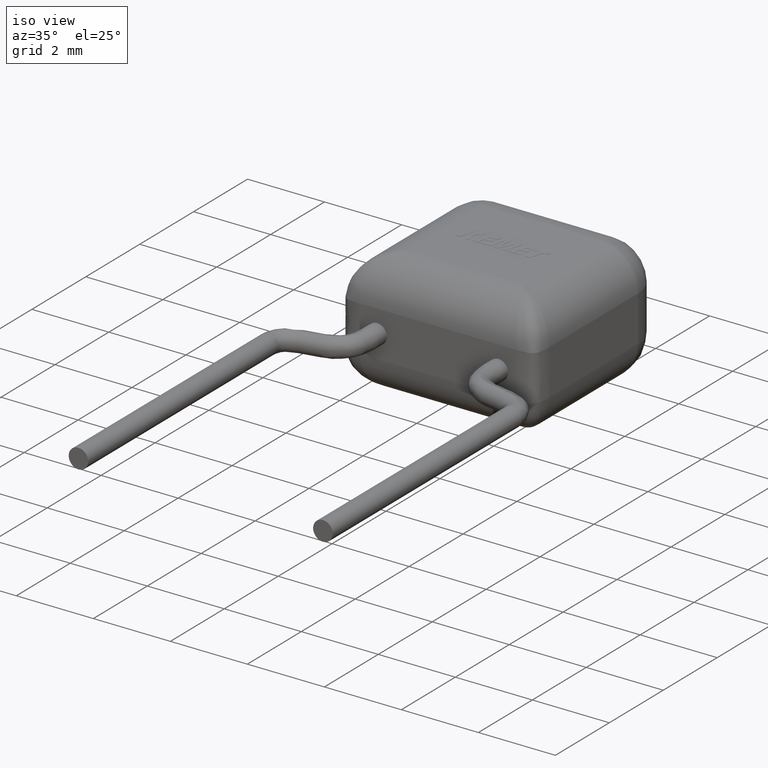
[diagram: clean part render]
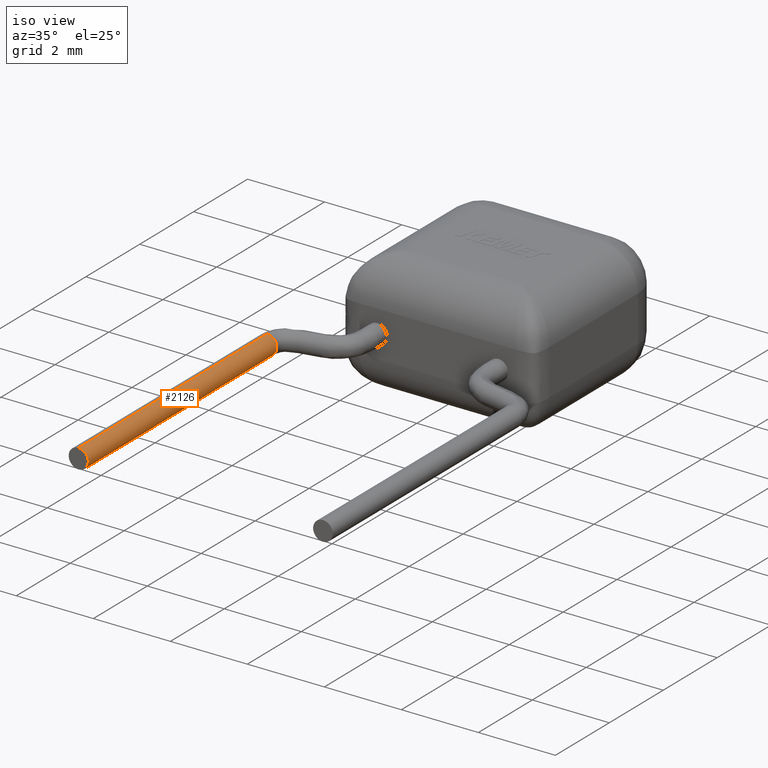
[diagram: same view with one face highlighted and labeled with its STEP entity id]
A machine part, iso view. The second image highlights one B-rep face of the part: STEP entity #2126.
In plain terms, the highlighted face is a freeform B-spline surface patch.
Its self-contained STEP definition (entity closure, byte-faithful):
#95 = AXIS2_PLACEMENT_3D ( 'NONE', #1979, #5043, #879 ) ;
#432 = CARTESIAN_POINT ( 'NONE',  ( -0.6349999999999997900, -1.789240000000000800, 1.589999999999999900 ) ) ;
#447 = VECTOR ( 'NONE', #3697, 1000.000000000000000 ) ;
#879 = DIRECTION ( 'NONE',  ( 0.0000000000000000000, 0.0000000000000000000, -1.000000000000000000 ) ) ;
#913 = ORIENTED_EDGE ( 'NONE', *, *, #6501, .T. ) ;
#966 = DIRECTION ( 'NONE',  ( 0.0000000000000000000, 0.0000000000000000000, -1.000000000000000000 ) ) ;
#1030 = DIRECTION ( 'NONE',  ( -0.003953937269740414300, -0.9999921831594820200, -1.232595164407828500E-032 ) ) ;
#1155 = EDGE_CURVE ( 'NONE', #1294, #6392, #3524, .T. ) ;
#1294 = VERTEX_POINT ( 'NONE', #5185 ) ;
#1355 = DIRECTION ( 'NONE',  ( 1.548860246407863800E-016, -1.000000000000000000, 0.0000000000000000000 ) ) ;
#1411 = VECTOR ( 'NONE', #1355, 1000.000000000000000 ) ;
#1704 = CIRCLE ( 'NONE', #95, 0.2550000000000000000 ) ;
#1979 = CARTESIAN_POINT ( 'NONE',  ( -0.6349999999999987900, -8.789239999999999500, 1.589999999999999900 ) ) ;
#2126 = ADVANCED_FACE ( 'NONE', ( #2611 ), #5162, .T. ) ;
#2473 = CARTESIAN_POINT ( 'NONE',  ( -0.6349999999999997900, -1.789240000000000800, 1.844999999999999800 ) ) ;
#2611 = FACE_OUTER_BOUND ( 'NONE', #4254, .T. ) ;
#2657 = CIRCLE ( 'NONE', #5088, 0.2550000000000000000 ) ;
#2959 = CARTESIAN_POINT ( 'NONE',  ( -0.6349999999999997900, -1.789240000000000800, 1.334999999999999700 ) ) ;
#3006 = ORIENTED_EDGE ( 'NONE', *, *, #5492, .F. ) ;
#3422 = CARTESIAN_POINT ( 'NONE',  ( -0.6349999999999997900, -1.789240000000000800, 1.334999999999999700 ) ) ;
#3436 = ORIENTED_EDGE ( 'NONE', *, *, #1155, .F. ) ;
#3524 = LINE ( 'NONE', #3422, #1411 ) ;
#3603 = CARTESIAN_POINT ( 'NONE',  ( -0.1250039865886641000, -1.791256508007568200, 1.334999999999999700 ) ) ;
#3697 = DIRECTION ( 'NONE',  ( 1.548860246407863800E-016, -1.000000000000000000, 0.0000000000000000000 ) ) ;
#3804 = EDGE_CURVE ( 'NONE', #1294, #5534, #2657, .T. ) ;
#4140 = CARTESIAN_POINT ( 'NONE',  ( -0.1250039865886641000, -1.791256508007568200, 1.844999999999999800 ) ) ;
#4254 = EDGE_LOOP ( 'NONE', ( #4702, #913, #3006, #3436 ) ) ;
#4459 = CARTESIAN_POINT ( 'NONE',  ( -0.6349999999999987900, -8.789239999999995900, 1.334999999999999700 ) ) ;
#4502 = CARTESIAN_POINT ( 'NONE',  ( -0.6349999999999997900, -1.789240000000000800, 1.844999999999999800 ) ) ;
#4623 = CARTESIAN_POINT ( 'NONE',  ( -0.6349999999999987900, -8.789239999999995900, 1.844999999999999800 ) ) ;
#4702 = ORIENTED_EDGE ( 'NONE', *, *, #3804, .T. ) ;
#4790 = CARTESIAN_POINT ( 'NONE',  ( -0.6349999999999987900, -8.789239999999999500, 1.334999999999999700 ) ) ;
#5043 = DIRECTION ( 'NONE',  ( -0.003953937269740414300, -0.9999921831594820200, -1.232595164407828500E-032 ) ) ;
#5088 = AXIS2_PLACEMENT_3D ( 'NONE', #432, #1030, #966 ) ;
#5162 =( BOUNDED_SURFACE ( )  B_SPLINE_SURFACE ( 3, 1, ( 
 ( #2959, #4459 ),
 ( #3603, #6109 ),
 ( #4140, #5570 ),
 ( #2473, #4623 ) ),
 .UNSPECIFIED., .F., .F., .F. ) 
 B_SPLINE_SURFACE_WITH_KNOTS ( ( 4, 4 ),
 ( 2, 2 ),
 ( 0.0000000000000000000, 1.000000000000000000 ),
 ( 0.0000000000000000000, 1.000000000000000000 ),
 .UNSPECIFIED. ) 
 GEOMETRIC_REPRESENTATION_ITEM ( )  RATIONAL_B_SPLINE_SURFACE ( (
 ( 1.000000000000000000, 1.000000000000000000),
 ( 0.3333333333333333700, 0.3333333333333333700),
 ( 0.3333333333333333700, 0.3333333333333333700),
 ( 1.000000000000000000, 1.000000000000000000) ) ) 
 REPRESENTATION_ITEM ( '' )  SURFACE ( )  );
#5185 = CARTESIAN_POINT ( 'NONE',  ( -0.6349999999999997900, -1.789240000000000800, 1.334999999999999700 ) ) ;
#5492 = EDGE_CURVE ( 'NONE', #6392, #6624, #1704, .T. ) ;
#5534 = VERTEX_POINT ( 'NONE', #4502 ) ;
#5570 = CARTESIAN_POINT ( 'NONE',  ( -0.1250039865886630200, -8.791256508007563800, 1.844999999999999800 ) ) ;
#5842 = CARTESIAN_POINT ( 'NONE',  ( -0.6349999999999987900, -8.789239999999999500, 1.844999999999999800 ) ) ;
#6109 = CARTESIAN_POINT ( 'NONE',  ( -0.1250039865886630200, -8.791256508007563800, 1.334999999999999700 ) ) ;
#6125 = LINE ( 'NONE', #6228, #447 ) ;
#6228 = CARTESIAN_POINT ( 'NONE',  ( -0.6349999999999997900, -1.789240000000000800, 1.844999999999999800 ) ) ;
#6392 = VERTEX_POINT ( 'NONE', #4790 ) ;
#6501 = EDGE_CURVE ( 'NONE', #5534, #6624, #6125, .T. ) ;
#6624 = VERTEX_POINT ( 'NONE', #5842 ) ;